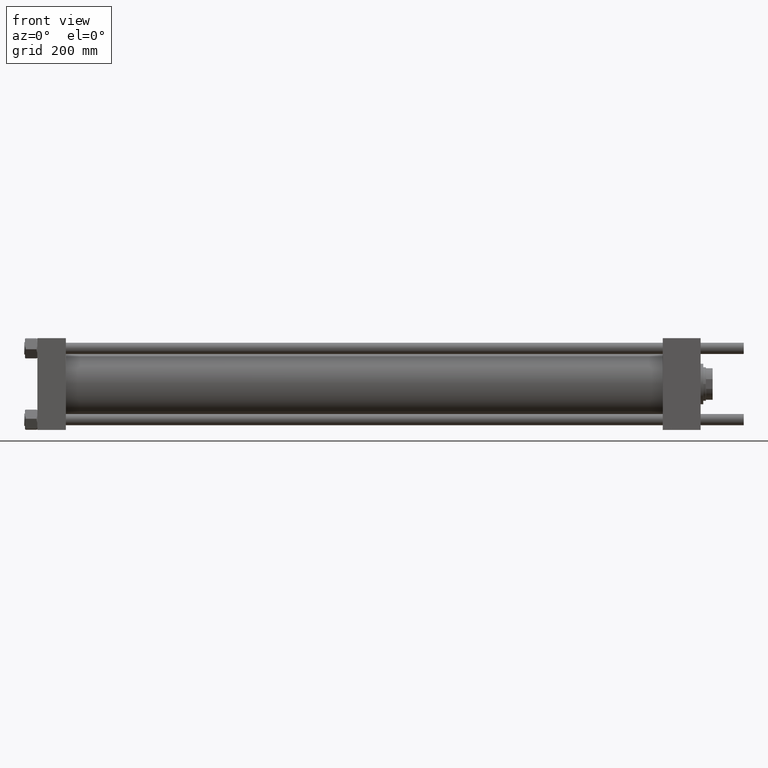
[diagram: clean part render]
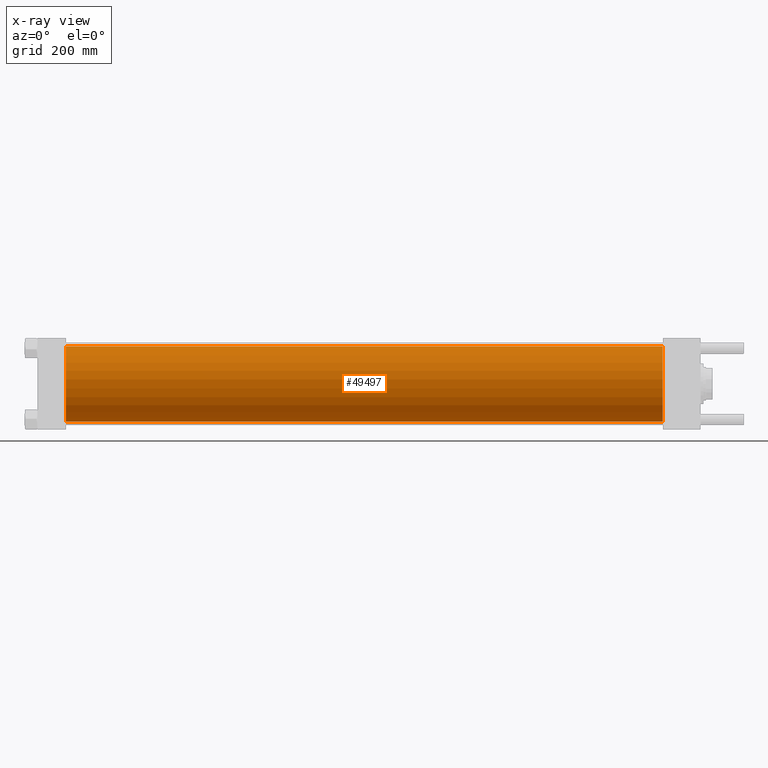
[diagram: x-ray — body ghosted, one internal face saturated and labeled with its STEP entity id]
A machine part, front view, then the same camera in x-ray: the body is ghosted and one INTERNAL B-rep face — a face not visible from any outside direction — is saturated and labeled: STEP entity #49497.
In plain terms, the highlighted cylindrical surface (partial cylindrical patch) has radius 100 mm, axis along (-1, -0, -0).
Its self-contained STEP definition (entity closure, byte-faithful):
#20 = EDGE_CURVE ( 'NONE', #51213, #32226, #16527, .T. ) ;
#1932 = DIRECTION ( 'NONE',  ( 1.000000000000000000, 0.000000000000000000, 0.000000000000000000 ) ) ;
#2976 = CIRCLE ( 'NONE', #23325, 100.0000000000000000 ) ;
#4572 = DIRECTION ( 'NONE',  ( -1.000000000000000000, -0.000000000000000000, -0.000000000000000000 ) ) ;
#9271 = AXIS2_PLACEMENT_3D ( 'NONE', #16482, #34156, #38483 ) ;
#10595 = EDGE_CURVE ( 'NONE', #50103, #32226, #48081, .T. ) ;
#13229 = CYLINDRICAL_SURFACE ( 'NONE', #49752, 100.0000000000000000 ) ;
#13937 = CARTESIAN_POINT ( 'NONE',  ( 76.00000000000000000, 9.644382777508321529E-15, -100.0000000000000000 ) ) ;
#16482 = CARTESIAN_POINT ( 'NONE',  ( 76.00000000000000000, -2.602085213965210642E-15, 0.000000000000000000 ) ) ;
#16527 = LINE ( 'NONE', #34480, #42186 ) ;
#17632 = EDGE_LOOP ( 'NONE', ( #46639, #24916, #49954, #37267 ) ) ;
#22155 = EDGE_CURVE ( 'NONE', #44975, #51213, #2976, .T. ) ;
#23325 = AXIS2_PLACEMENT_3D ( 'NONE', #24192, #1932, #54594 ) ;
#24192 = CARTESIAN_POINT ( 'NONE',  ( 1668.000000000000227, -2.602085213965210642E-15, 0.000000000000000000 ) ) ;
#24916 = ORIENTED_EDGE ( 'NONE', *, *, #20, .T. ) ;
#26072 = EDGE_CURVE ( 'NONE', #44975, #50103, #55102, .T. ) ;
#27510 = CARTESIAN_POINT ( 'NONE',  ( 1668.000000000000227, -2.602085213965210642E-15, 100.0000000000000000 ) ) ;
#32226 = VERTEX_POINT ( 'NONE', #13937 ) ;
#33400 = CARTESIAN_POINT ( 'NONE',  ( 1668.000000000000227, -2.602085213965210642E-15, 100.0000000000000000 ) ) ;
#34156 = DIRECTION ( 'NONE',  ( 1.000000000000000000, 0.000000000000000000, 0.000000000000000000 ) ) ;
#34480 = CARTESIAN_POINT ( 'NONE',  ( 1668.000000000000227, 9.644382777508321529E-15, -100.0000000000000000 ) ) ;
#37267 = ORIENTED_EDGE ( 'NONE', *, *, #26072, .F. ) ;
#37472 = CARTESIAN_POINT ( 'NONE',  ( 1668.000000000000227, 9.644382777508321529E-15, -100.0000000000000000 ) ) ;
#38304 = DIRECTION ( 'NONE',  ( -1.000000000000000000, -0.000000000000000000, -0.000000000000000000 ) ) ;
#38483 = DIRECTION ( 'NONE',  ( 0.000000000000000000, 0.000000000000000000, -1.000000000000000000 ) ) ;
#39095 = DIRECTION ( 'NONE',  ( -1.000000000000000000, -0.000000000000000000, -0.000000000000000000 ) ) ;
#42186 = VECTOR ( 'NONE', #39095, 1000.000000000000000 ) ;
#44975 = VERTEX_POINT ( 'NONE', #27510 ) ;
#45608 = VECTOR ( 'NONE', #38304, 1000.000000000000000 ) ;
#46639 = ORIENTED_EDGE ( 'NONE', *, *, #22155, .T. ) ;
#48081 = CIRCLE ( 'NONE', #9271, 100.0000000000000000 ) ;
#48264 = FACE_OUTER_BOUND ( 'NONE', #17632, .T. ) ;
#48846 = CARTESIAN_POINT ( 'NONE',  ( 1668.000000000000227, -2.602085213965210642E-15, 0.000000000000000000 ) ) ;
#49133 = DIRECTION ( 'NONE',  ( 0.000000000000000000, 0.000000000000000000, 1.000000000000000000 ) ) ;
#49497 = ADVANCED_FACE ( 'NONE', ( #48264 ), #13229, .F. ) ;
#49752 = AXIS2_PLACEMENT_3D ( 'NONE', #48846, #4572, #49133 ) ;
#49954 = ORIENTED_EDGE ( 'NONE', *, *, #10595, .F. ) ;
#50103 = VERTEX_POINT ( 'NONE', #54179 ) ;
#51213 = VERTEX_POINT ( 'NONE', #37472 ) ;
#54179 = CARTESIAN_POINT ( 'NONE',  ( 76.00000000000000000, -2.602085213965210642E-15, 100.0000000000000000 ) ) ;
#54594 = DIRECTION ( 'NONE',  ( 0.000000000000000000, 0.000000000000000000, -1.000000000000000000 ) ) ;
#55102 = LINE ( 'NONE', #33400, #45608 ) ;